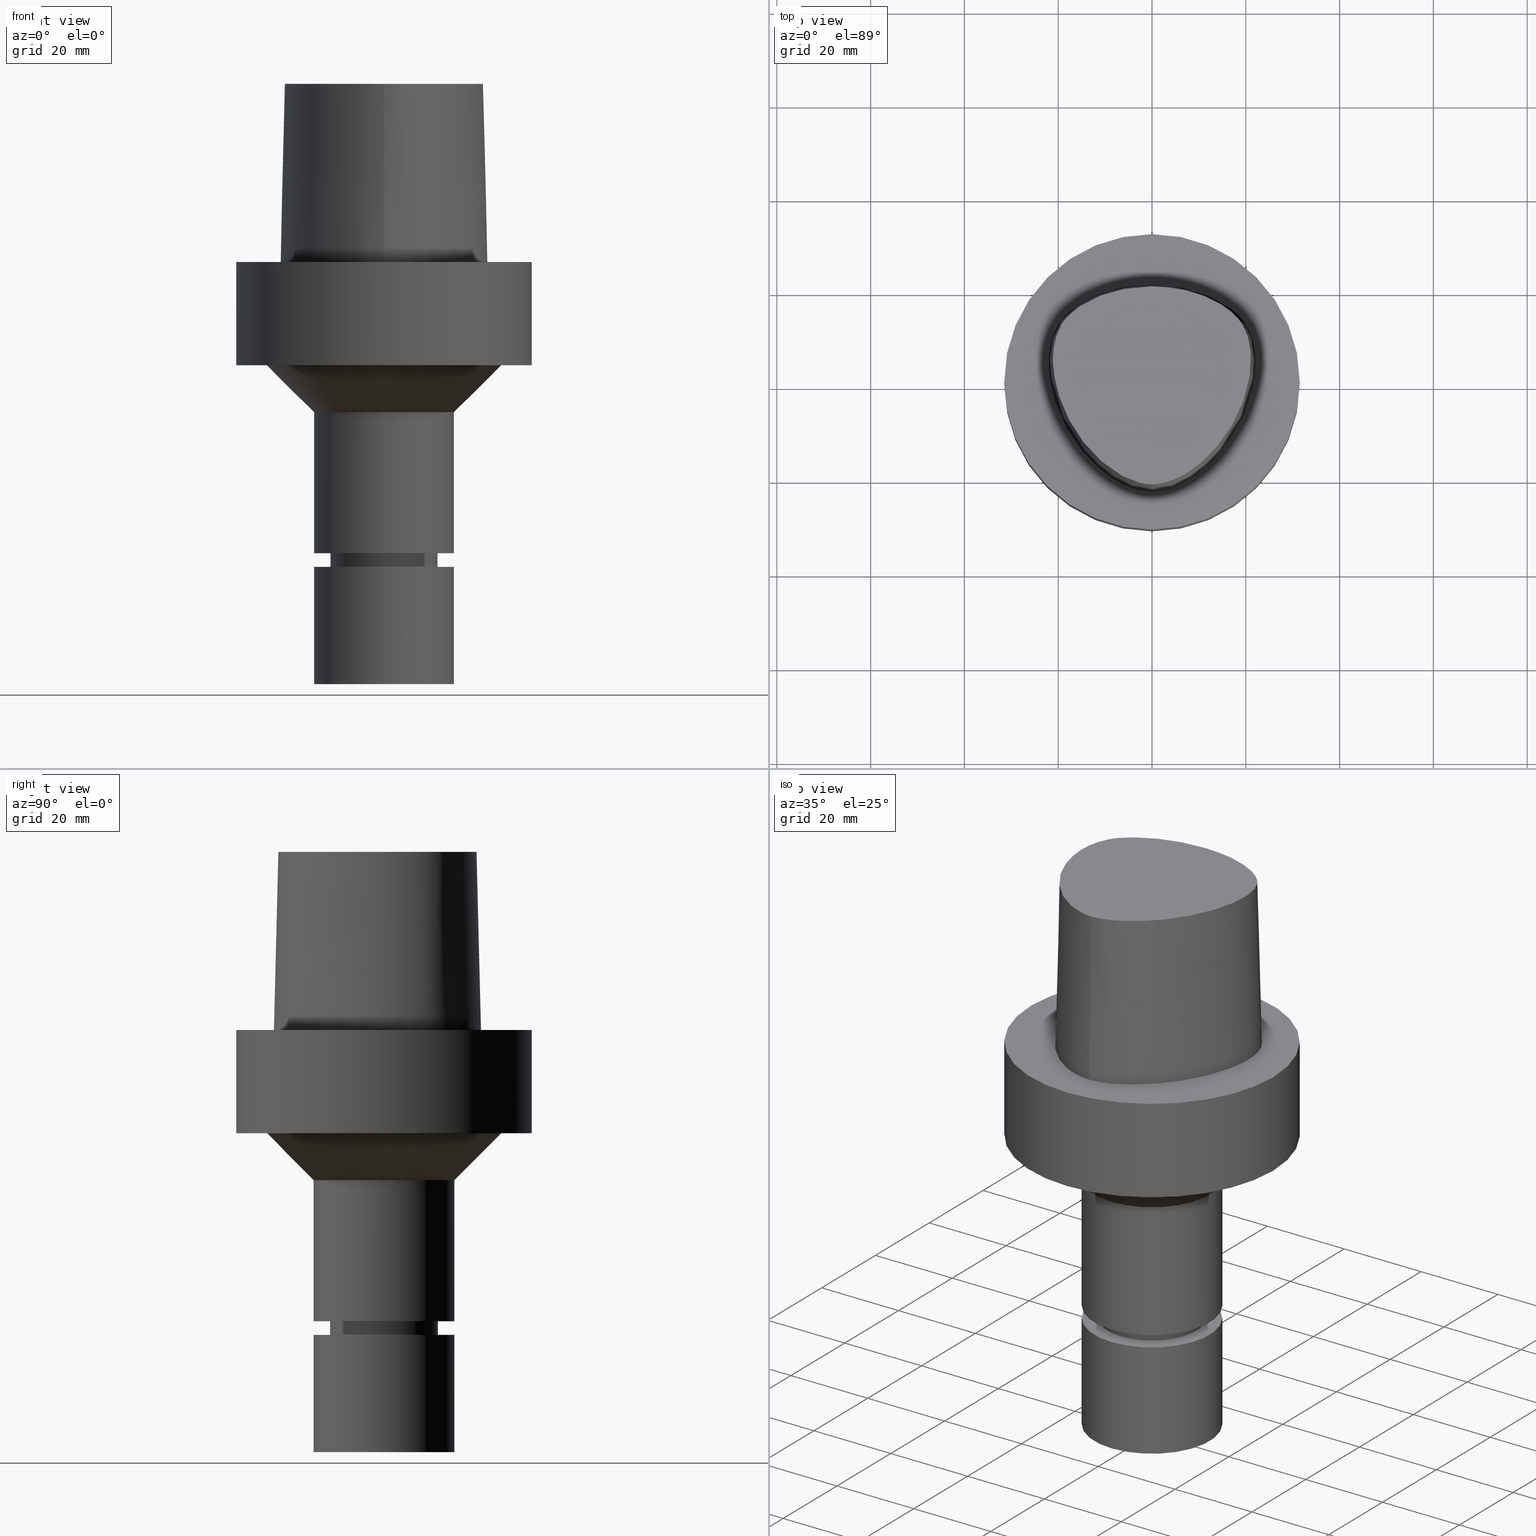
[diagram: canonical four-view strip — front | top / right | iso, engineering-drawing reading convention]
A machine part, canonical four-view strip (front | top / right | iso — engineering-drawing reading convention). The complete STEP part file that produces these views, byte-faithful:
ISO-10303-21;
HEADER;
FILE_DESCRIPTION((''),'1');
FILE_NAME('V:/90_\X2\53D65F9730C730FC30BF\X0\/00_\X2\6DE18DEF30C730FC30BF\X0\/ALL/CAPTO-BKUS\X2\52A05DE556F3\X0\_201801/C6-MEGAER/C6-MEGAER16-90NL.stp','2018-02-01T07:47:06',(''),(''),'Spatial Interop R21 SP3','Kubotek KeyCreator 2011 V10.0.2 (22737)',' ');
FILE_SCHEMA(('automotive_design'));
ENDSEC;
DATA;
#1=MECHANICAL_DESIGN_GEOMETRIC_PRESENTATION_REPRESENTATION(' ',(#14,#15,#16,#17,#18,#19,#20,#21,#22,#23,#24,#25,#26,#27,#28,#29,#30,#31,#32,#33,#34,#35,#36,#37,#38,#39,#40,#41,#42,#43,#44,#45,#46,#47,#48,#49,#50,#51,#52,#53),#10);
#2=PRODUCT_DEFINITION_CONTEXT('',#54,'design');
#3=APPLICATION_PROTOCOL_DEFINITION('INTERNATIONAL STANDARD','automotive_design',1994,#54);
#4=PRODUCT_CATEGORY_RELATIONSHIP('NONE','NONE',#55,#56);
#5=SHAPE_DEFINITION_REPRESENTATION(#57,#58);
#6=PRODUCT_DEFINITION_CONTEXT('',#59,'design');
#7=APPLICATION_PROTOCOL_DEFINITION('INTERNATIONAL STANDARD','automotive_design',1994,#59);
#8=PRODUCT_CATEGORY_RELATIONSHIP('NONE','NONE',#60,#61);
#9=SHAPE_DEFINITION_REPRESENTATION(#62,#63);
#10= (GEOMETRIC_REPRESENTATION_CONTEXT(3)GLOBAL_UNCERTAINTY_ASSIGNED_CONTEXT((#66))GLOBAL_UNIT_ASSIGNED_CONTEXT((#68,#69,#70))REPRESENTATION_CONTEXT('NONE','WORKSPACE'));
#14=STYLED_ITEM('',(#72),#73);
#15=STYLED_ITEM('',(#74),#75);
#16=STYLED_ITEM('',(#76,#77),#78);
#17=STYLED_ITEM('',(#79),#80);
#18=STYLED_ITEM('',(#81),#82);
#19=STYLED_ITEM('',(#83),#84);
#20=STYLED_ITEM('',(#85,#86),#87);
#21=STYLED_ITEM('',(#88,#89),#90);
#22=STYLED_ITEM('',(#91,#92),#93);
#23=STYLED_ITEM('',(#94),#95);
#24=STYLED_ITEM('',(#96),#97);
#25=STYLED_ITEM('',(#98),#99);
#26=STYLED_ITEM('',(#100),#101);
#27=STYLED_ITEM('',(#102,#103),#104);
#28=STYLED_ITEM('',(#105,#106),#107);
#29=STYLED_ITEM('',(#108,#109),#110);
#30=STYLED_ITEM('',(#111),#112);
#31=STYLED_ITEM('',(#113),#114);
#32=STYLED_ITEM('',(#115,#116),#117);
#33=STYLED_ITEM('',(#118),#119);
#34=STYLED_ITEM('',(#120),#121);
#35=STYLED_ITEM('',(#122,#123),#124);
#36=STYLED_ITEM('',(#125,#126),#127);
#37=STYLED_ITEM('',(#128,#129),#130);
#38=STYLED_ITEM('',(#131),#132);
#39=STYLED_ITEM('',(#133),#134);
#40=STYLED_ITEM('',(#135),#136);
#41=STYLED_ITEM('',(#137),#138);
#42=STYLED_ITEM('',(#139,#140),#141);
#43=STYLED_ITEM('',(#142,#143),#144);
#44=STYLED_ITEM('',(#145,#146),#147);
#45=STYLED_ITEM('',(#148,#149),#150);
#46=STYLED_ITEM('',(#151),#152);
#47=STYLED_ITEM('',(#153,#154),#155);
#48=STYLED_ITEM('',(#156,#157),#158);
#49=STYLED_ITEM('',(#159,#160),#161);
#50=STYLED_ITEM('',(#162),#163);
#51=STYLED_ITEM('',(#164),#165);
#52=STYLED_ITEM('',(#166,#167),#168);
#53=STYLED_ITEM('',(#169,#170),#171);
#54=APPLICATION_CONTEXT(' ');
#55=PRODUCT_CATEGORY('part','NONE');
#56=PRODUCT_RELATED_PRODUCT_CATEGORY('detail',' ',(#172));
#57=PRODUCT_DEFINITION_SHAPE('NONE','NONE',#173);
#58=ADVANCED_BREP_SHAPE_REPRESENTATION('Unnamed[1]',(#158,#174),#10);
#59=APPLICATION_CONTEXT(' ');
#60=PRODUCT_CATEGORY('part','NONE');
#61=PRODUCT_RELATED_PRODUCT_CATEGORY('detail',' ',(#175));
#62=PRODUCT_DEFINITION_SHAPE('NONE','NONE',#176);
#63=ADVANCED_BREP_SHAPE_REPRESENTATION('Unnamed[1]',(#93,#177),#10);
#66=UNCERTAINTY_MEASURE_WITH_UNIT(LENGTH_MEASURE(1.0E-006),#68,'','');
#68= (CONVERSION_BASED_UNIT('MILLIMETRE',#180)LENGTH_UNIT()NAMED_UNIT(#183));
#69= (NAMED_UNIT(#185)PLANE_ANGLE_UNIT()SI_UNIT($,.RADIAN.));
#70= (NAMED_UNIT(#185)SOLID_ANGLE_UNIT()SI_UNIT($,.STERADIAN.));
#72=PRESENTATION_STYLE_ASSIGNMENT((#191));
#73=EDGE_CURVE('Unnamed[1]',#192,#192,#193,.T.);
#74=PRESENTATION_STYLE_ASSIGNMENT((#194));
#75=EDGE_CURVE('Unnamed[1]',#195,#195,#196,.T.);
#76=PRESENTATION_STYLE_ASSIGNMENT((#197));
#77=PRESENTATION_STYLE_ASSIGNMENT((#198));
#78=ADVANCED_FACE('Unnamed[1]',(#199,#200),#201,.T.);
#79=PRESENTATION_STYLE_ASSIGNMENT((#202));
#80=EDGE_CURVE('Unnamed[1]',#203,#204,#205,.T.);
#81=PRESENTATION_STYLE_ASSIGNMENT((#206));
#82=EDGE_CURVE('Unnamed[1]',#207,#208,#209,.T.);
#83=PRESENTATION_STYLE_ASSIGNMENT((#210));
#84=EDGE_CURVE('Unnamed[1]',#204,#211,#212,.T.);
#85=PRESENTATION_STYLE_ASSIGNMENT((#213));
#86=PRESENTATION_STYLE_ASSIGNMENT((#214));
#87=ADVANCED_FACE('Unnamed[1]',(#215),#216,.T.);
#88=PRESENTATION_STYLE_ASSIGNMENT((#217));
#89=PRESENTATION_STYLE_ASSIGNMENT((#218));
#90=ADVANCED_FACE('Unnamed[1]',(#219,#220),#221,.T.);
#91=PRESENTATION_STYLE_ASSIGNMENT((#222));
#92=PRESENTATION_STYLE_ASSIGNMENT((#223));
#93=MANIFOLD_SOLID_BREP('Unnamed[1]',#224);
#94=PRESENTATION_STYLE_ASSIGNMENT((#225));
#95=EDGE_CURVE('Unnamed[1]',#226,#226,#227,.T.);
#96=PRESENTATION_STYLE_ASSIGNMENT((#228));
#97=EDGE_CURVE('Unnamed[1]',#229,#229,#230,.T.);
#98=PRESENTATION_STYLE_ASSIGNMENT((#231));
#99=EDGE_CURVE('Unnamed[1]',#211,#208,#232,.T.);
#100=PRESENTATION_STYLE_ASSIGNMENT((#233));
#101=EDGE_CURVE('Unnamed[1]',#234,#234,#235,.T.);
#102=PRESENTATION_STYLE_ASSIGNMENT((#236));
#103=PRESENTATION_STYLE_ASSIGNMENT((#237));
#104=ADVANCED_FACE('Unnamed[1]',(#238),#239,.T.);
#105=PRESENTATION_STYLE_ASSIGNMENT((#240));
#106=PRESENTATION_STYLE_ASSIGNMENT((#241));
#107=ADVANCED_FACE('Unnamed[1]',(#242),#243,.T.);
#108=PRESENTATION_STYLE_ASSIGNMENT((#244));
#109=PRESENTATION_STYLE_ASSIGNMENT((#245));
#110=ADVANCED_FACE('Unnamed[1]',(#246,#247),#248,.T.);
#111=PRESENTATION_STYLE_ASSIGNMENT((#249));
#112=EDGE_CURVE('Unnamed[1]',#250,#250,#251,.T.);
#113=PRESENTATION_STYLE_ASSIGNMENT((#252));
#114=EDGE_CURVE('Unnamed[1]',#253,#253,#254,.T.);
#115=PRESENTATION_STYLE_ASSIGNMENT((#255));
#116=PRESENTATION_STYLE_ASSIGNMENT((#256));
#117=ADVANCED_FACE('Unnamed[1]',(#257,#258),#259,.T.);
#118=PRESENTATION_STYLE_ASSIGNMENT((#260));
#119=EDGE_CURVE('Unnamed[1]',#261,#261,#262,.T.);
#120=PRESENTATION_STYLE_ASSIGNMENT((#263));
#121=EDGE_CURVE('Unnamed[1]',#207,#211,#264,.T.);
#122=PRESENTATION_STYLE_ASSIGNMENT((#265));
#123=PRESENTATION_STYLE_ASSIGNMENT((#266));
#124=ADVANCED_FACE('Unnamed[1]',(#267,#268),#269,.T.);
#125=PRESENTATION_STYLE_ASSIGNMENT((#270));
#126=PRESENTATION_STYLE_ASSIGNMENT((#271));
#127=ADVANCED_FACE('Unnamed[1]',(#272,#273),#274,.T.);
#128=PRESENTATION_STYLE_ASSIGNMENT((#275));
#129=PRESENTATION_STYLE_ASSIGNMENT((#276));
#130=ADVANCED_FACE('Unnamed[1]',(#277,#278),#279,.T.);
#131=PRESENTATION_STYLE_ASSIGNMENT((#280));
#132=EDGE_CURVE('Unnamed[1]',#207,#203,#281,.T.);
#133=PRESENTATION_STYLE_ASSIGNMENT((#282));
#134=EDGE_CURVE('Unnamed[1]',#208,#204,#283,.T.);
#135=PRESENTATION_STYLE_ASSIGNMENT((#284));
#136=EDGE_CURVE('Unnamed[1]',#285,#285,#286,.T.);
#137=PRESENTATION_STYLE_ASSIGNMENT((#287));
#138=EDGE_CURVE('Unnamed[1]',#203,#207,#288,.T.);
#139=PRESENTATION_STYLE_ASSIGNMENT((#289));
#140=PRESENTATION_STYLE_ASSIGNMENT((#290));
#141=ADVANCED_FACE('Unnamed[1]',(#291,#292),#293,.T.);
#142=PRESENTATION_STYLE_ASSIGNMENT((#294));
#143=PRESENTATION_STYLE_ASSIGNMENT((#295));
#144=ADVANCED_FACE('Unnamed[1]',(#296,#297),#298,.T.);
#145=PRESENTATION_STYLE_ASSIGNMENT((#299));
#146=PRESENTATION_STYLE_ASSIGNMENT((#300));
#147=ADVANCED_FACE('Unnamed[1]',(#301,#302),#303,.T.);
#148=PRESENTATION_STYLE_ASSIGNMENT((#304));
#149=PRESENTATION_STYLE_ASSIGNMENT((#305));
#150=ADVANCED_FACE('Unnamed[1]',(#306),#307,.T.);
#151=PRESENTATION_STYLE_ASSIGNMENT((#308));
#152=EDGE_CURVE('Unnamed[1]',#309,#309,#310,.T.);
#153=PRESENTATION_STYLE_ASSIGNMENT((#311));
#154=PRESENTATION_STYLE_ASSIGNMENT((#312));
#155=ADVANCED_FACE('Unnamed[1]',(#313),#314,.T.);
#156=PRESENTATION_STYLE_ASSIGNMENT((#315));
#157=PRESENTATION_STYLE_ASSIGNMENT((#316));
#158=MANIFOLD_SOLID_BREP('Unnamed[1]',#317);
#159=PRESENTATION_STYLE_ASSIGNMENT((#318));
#160=PRESENTATION_STYLE_ASSIGNMENT((#319));
#161=ADVANCED_FACE('Unnamed[1]',(#320),#321,.T.);
#162=PRESENTATION_STYLE_ASSIGNMENT((#322));
#163=EDGE_CURVE('Unnamed[1]',#323,#323,#324,.T.);
#164=PRESENTATION_STYLE_ASSIGNMENT((#325));
#165=EDGE_CURVE('Unnamed[1]',#326,#326,#327,.T.);
#166=PRESENTATION_STYLE_ASSIGNMENT((#328));
#167=PRESENTATION_STYLE_ASSIGNMENT((#329));
#168=ADVANCED_FACE('Unnamed[1]',(#330,#331),#332,.T.);
#169=PRESENTATION_STYLE_ASSIGNMENT((#333));
#170=PRESENTATION_STYLE_ASSIGNMENT((#334));
#171=ADVANCED_FACE('Unnamed[1]',(#335),#336,.T.);
#172=PRODUCT('Unnamed[1]','Unnamed[1]','PART-Unnamed[1]-DESC',(#337));
#173=PRODUCT_DEFINITION('NONE','NONE',#338,#2);
#174=AXIS2_PLACEMENT_3D('',#339,#340,#341);
#175=PRODUCT('Unnamed[1]','Unnamed[1]','PART-Unnamed[1]-DESC',(#342));
#176=PRODUCT_DEFINITION('NONE','NONE',#343,#6);
#177=AXIS2_PLACEMENT_3D('',#344,#345,#346);
#180=LENGTH_MEASURE_WITH_UNIT(LENGTH_MEASURE(1.0),#347);
#183=DIMENSIONAL_EXPONENTS(1.0,0.0,0.0,0.0,0.0,0.0,0.0);
#185=DIMENSIONAL_EXPONENTS(0.0,0.0,0.0,0.0,0.0,0.0,0.0);
#191=CURVE_STYLE('',#348,POSITIVE_LENGTH_MEASURE(1000.0),#349);
#192=VERTEX_POINT('',#350);
#193=CIRCLE('',#351,9.89999999999962);
#194=CURVE_STYLE('',#352,POSITIVE_LENGTH_MEASURE(1000.0),#353);
#195=VERTEX_POINT('',#354);
#196=CIRCLE('',#355,31.5);
#197=SURFACE_STYLE_USAGE(.BOTH.,#356);
#198=CURVE_STYLE('',#357,POSITIVE_LENGTH_MEASURE(1000.0),#358);
#199=FACE_BOUND('',#359,.T.);
#200=FACE_BOUND('',#360,.T.);
#201=CYLINDRICAL_SURFACE('',#361,11.4999999999964);
#202=CURVE_STYLE('',#362,POSITIVE_LENGTH_MEASURE(1000.0),#363);
#203=VERTEX_POINT('',#364);
#204=VERTEX_POINT('',#365);
#205=LINE('',#366,#367);
#206=CURVE_STYLE('',#368,POSITIVE_LENGTH_MEASURE(1000.0),#369);
#207=VERTEX_POINT('',#370);
#208=VERTEX_POINT('',#371);
#209=LINE('',#372,#373);
#210=CURVE_STYLE('',#374,POSITIVE_LENGTH_MEASURE(1000.0),#375);
#211=VERTEX_POINT('',#376);
#212=B_SPLINE_CURVE_WITH_KNOTS('',3,(#377,#378,#379,#380,#381,#382,#383,#384,#385,#386,#387,#388,#389,#390,#391,#392,#393,#394),.UNSPECIFIED.,.F.,.F.,(4,1,1,1,1,1,1,1,1,2,1,1,1,1,4),(-6.6151339308743,-6.20168806019465,-5.78824218951501,-5.37479631883537,-4.96135044815572,-4.13445870679644,-3.30756696543715,-2.89412109475751,-2.48067522407786,-2.06722935339822,-1.65378348271857,-1.24033761203893,-0.826891741359287,-0.413445870679644,0.0),.UNSPECIFIED.);
#213=SURFACE_STYLE_USAGE(.BOTH.,#395);
#214=CURVE_STYLE('',#396,POSITIVE_LENGTH_MEASURE(1000.0),#397);
#215=FACE_OUTER_BOUND('',#398,.T.);
#216=PLANE('',#399);
#217=SURFACE_STYLE_USAGE(.BOTH.,#400);
#218=CURVE_STYLE('',#401,POSITIVE_LENGTH_MEASURE(1000.0),#402);
#219=FACE_BOUND('',#403,.T.);
#220=FACE_BOUND('',#404,.T.);
#221=CYLINDRICAL_SURFACE('',#405,15.0);
#222=SURFACE_STYLE_USAGE(.BOTH.,#406);
#223=CURVE_STYLE('',#407,POSITIVE_LENGTH_MEASURE(1000.0),#408);
#224=CLOSED_SHELL('',(#87,#150,#90));
#225=CURVE_STYLE('',#409,POSITIVE_LENGTH_MEASURE(1000.0),#410);
#226=VERTEX_POINT('',#411);
#227=CIRCLE('',#412,11.5000000000021);
#228=CURVE_STYLE('',#413,POSITIVE_LENGTH_MEASURE(1000.0),#414);
#229=VERTEX_POINT('',#415);
#230=CIRCLE('',#416,15.0000000000001);
#231=CURVE_STYLE('',#417,POSITIVE_LENGTH_MEASURE(1000.0),#418);
#232=CIRCLE('',#419,0.949936168436318);
#233=CURVE_STYLE('',#420,POSITIVE_LENGTH_MEASURE(1000.0),#421);
#234=VERTEX_POINT('',#422);
#235=CIRCLE('',#423,11.4999999999907);
#236=SURFACE_STYLE_USAGE(.BOTH.,#424);
#237=CURVE_STYLE('',#425,POSITIVE_LENGTH_MEASURE(1000.0),#426);
#238=FACE_OUTER_BOUND('',#427,.T.);
#239=B_SPLINE_SURFACE_WITH_KNOTS('',3,3,((#428,#429,#430,#431),(#432,#433,#434,#435),(#436,#437,#438,#439),(#440,#441,#442,#443),(#444,#445,#446,#447),(#448,#449,#450,#451),(#452,#453,#454,#455),(#456,#457,#458,#459),(#460,#461,#462,#463),(#464,#465,#466,#467),(#468,#469,#470,#471),(#472,#473,#474,#475),(#476,#477,#478,#479),(#480,#481,#482,#483),(#484,#485,#486,#487),(#488,#489,#490,#491),(#492,#493,#494,#495),(#496,#497,#498,#499)),.UNSPECIFIED.,.F.,.F.,.F.,(4,1,1,1,1,1,1,1,1,2,1,1,1,1,4),(4,4),(-6.6151339308743,-6.20168806019465,-5.78824218951501,-5.37479631883537,-4.96135044815572,-4.13445870679644,-3.30756696543715,-2.89412109475751,-2.48067522407786,-2.06722935339822,-1.65378348271857,-1.24033761203893,-0.826891741359287,-0.413445870679644,0.0),(-3.8,0.0),.UNSPECIFIED.);
#240=SURFACE_STYLE_USAGE(.BOTH.,#500);
#241=CURVE_STYLE('',#501,POSITIVE_LENGTH_MEASURE(1000.0),#502);
#242=FACE_OUTER_BOUND('',#503,.T.);
#243=CONICAL_SURFACE('',#504,1.0,0.0249931148600041);
#244=SURFACE_STYLE_USAGE(.BOTH.,#505);
#245=CURVE_STYLE('',#506,POSITIVE_LENGTH_MEASURE(1000.0),#507);
#246=FACE_BOUND('',#508,.T.);
#247=FACE_BOUND('',#509,.T.);
#248=CONICAL_SURFACE('',#510,20.0000000000001,0.78539816339745);
#249=CURVE_STYLE('',#511,POSITIVE_LENGTH_MEASURE(1000.0),#512);
#250=VERTEX_POINT('',#513);
#251=CIRCLE('',#514,31.5);
#252=CURVE_STYLE('',#515,POSITIVE_LENGTH_MEASURE(1000.0),#516);
#253=VERTEX_POINT('',#517);
#254=CIRCLE('',#518,10.9999999999999);
#255=SURFACE_STYLE_USAGE(.BOTH.,#519);
#256=CURVE_STYLE('',#520,POSITIVE_LENGTH_MEASURE(1000.0),#521);
#257=FACE_BOUND('',#522,.T.);
#258=FACE_BOUND('',#523,.T.);
#259=CONICAL_SURFACE('',#524,10.4499999999999,0.523598775598227);
#260=CURVE_STYLE('',#525,POSITIVE_LENGTH_MEASURE(1000.0),#526);
#261=VERTEX_POINT('',#527);
#262=CIRCLE('',#528,11.0000000000003);
#263=CURVE_STYLE('',#529,POSITIVE_LENGTH_MEASURE(1000.0),#530);
#264=LINE('',#531,#532);
#265=SURFACE_STYLE_USAGE(.BOTH.,#533);
#266=CURVE_STYLE('',#534,POSITIVE_LENGTH_MEASURE(1000.0),#535);
#267=FACE_BOUND('',#536,.T.);
#268=FACE_OUTER_BOUND('',#537,.T.);
#269=PLANE('',#538);
#270=SURFACE_STYLE_USAGE(.BOTH.,#539);
#271=CURVE_STYLE('',#540,POSITIVE_LENGTH_MEASURE(1000.0),#541);
#272=FACE_BOUND('',#542,.T.);
#273=FACE_BOUND('',#543,.T.);
#274=CYLINDRICAL_SURFACE('',#544,15.0000000000002);
#275=SURFACE_STYLE_USAGE(.BOTH.,#545);
#276=CURVE_STYLE('',#546,POSITIVE_LENGTH_MEASURE(1000.0),#547);
#277=FACE_BOUND('',#548,.T.);
#278=FACE_BOUND('',#549,.T.);
#279=CYLINDRICAL_SURFACE('',#550,11.0000000000001);
#280=CURVE_STYLE('',#551,POSITIVE_LENGTH_MEASURE(1000.0),#552);
#281=B_SPLINE_CURVE_WITH_KNOTS('',3,(#553,#554,#555,#556,#557,#558,#559,#560,#561,#562,#563,#564,#565,#566,#567,#568),.UNSPECIFIED.,.F.,.F.,(4,1,1,1,1,1,1,1,1,1,1,1,1,4),(0.0,0.447924670568964,0.9388024242536,1.50591409090711,2.07314340012323,2.72424957442464,3.2253501842849,3.80982102049476,4.34867996267067,4.85900173381144,5.37972031856977,6.03459825488646,6.61113557741484,6.61513393087395),.UNSPECIFIED.);
#282=CURVE_STYLE('',#569,POSITIVE_LENGTH_MEASURE(1000.0),#570);
#283=B_SPLINE_CURVE_WITH_KNOTS('',3,(#571,#572,#573,#574,#575,#576,#577,#578,#579,#580,#581,#582,#583,#584,#585,#586,#587),.UNSPECIFIED.,.F.,.F.,(4,1,1,1,1,1,1,1,1,1,1,1,1,1,4),(-13.2302678617486,-12.816821991069,-12.4033761203893,-11.9899302497097,-11.57648437903,-11.1630385083504,-10.9563155730106,-10.7495926376707,-10.3361467669911,-9.92270089631145,-9.09580915495216,-8.26891741359287,-7.44202567223358,-7.02857980155394,-6.6151339308743),.UNSPECIFIED.);
#284=CURVE_STYLE('',#588,POSITIVE_LENGTH_MEASURE(1000.0),#589);
#285=VERTEX_POINT('',#590);
#286=CIRCLE('',#591,25.0000000000002);
#287=CURVE_STYLE('',#592,POSITIVE_LENGTH_MEASURE(1000.0),#593);
#288=B_SPLINE_CURVE_WITH_KNOTS('',3,(#594,#595,#596,#597,#598,#599,#600,#601,#602,#603,#604,#605,#606,#607,#608,#609),.UNSPECIFIED.,.F.,.F.,(4,1,1,1,1,1,1,1,1,1,1,1,1,4),(6.61513393087476,6.99917207152274,7.48193246986995,7.96289324787093,8.45540287038584,9.10291653679981,9.67129810936083,10.1618749681153,10.6358867802489,11.1080734988593,11.6043706019633,12.09451993853,12.6985979284494,13.2302678617486),.UNSPECIFIED.);
#289=SURFACE_STYLE_USAGE(.BOTH.,#610);
#290=CURVE_STYLE('',#611,POSITIVE_LENGTH_MEASURE(1000.0),#612);
#291=FACE_BOUND('',#613,.T.);
#292=FACE_OUTER_BOUND('',#614,.T.);
#293=PLANE('',#615);
#294=SURFACE_STYLE_USAGE(.BOTH.,#616);
#295=CURVE_STYLE('',#617,POSITIVE_LENGTH_MEASURE(1000.0),#618);
#296=FACE_BOUND('',#619,.T.);
#297=FACE_BOUND('',#620,.T.);
#298=CONICAL_SURFACE('',#621,11.250000000001,1.047197551189);
#299=SURFACE_STYLE_USAGE(.BOTH.,#622);
#300=CURVE_STYLE('',#623,POSITIVE_LENGTH_MEASURE(1000.0),#624);
#301=FACE_BOUND('',#625,.T.);
#302=FACE_OUTER_BOUND('',#626,.T.);
#303=PLANE('',#627);
#304=SURFACE_STYLE_USAGE(.BOTH.,#628);
#305=CURVE_STYLE('',#629,POSITIVE_LENGTH_MEASURE(1000.0),#630);
#306=FACE_OUTER_BOUND('',#631,.T.);
#307=PLANE('',#632);
#308=CURVE_STYLE('',#633,POSITIVE_LENGTH_MEASURE(1000.0),#634);
#309=VERTEX_POINT('',#635);
#310=CIRCLE('',#636,15.0);
#311=SURFACE_STYLE_USAGE(.BOTH.,#637);
#312=CURVE_STYLE('',#638,POSITIVE_LENGTH_MEASURE(1000.0),#639);
#313=FACE_OUTER_BOUND('',#640,.T.);
#314=PLANE('',#641);
#315=SURFACE_STYLE_USAGE(.BOTH.,#642);
#316=CURVE_STYLE('',#643,POSITIVE_LENGTH_MEASURE(1000.0),#644);
#317=CLOSED_SHELL('',(#161,#104,#107,#171,#124,#168,#147,#110,#127,#141,#78,#144,#130,#117,#155));
#318=SURFACE_STYLE_USAGE(.BOTH.,#645);
#319=CURVE_STYLE('',#646,POSITIVE_LENGTH_MEASURE(1000.0),#647);
#320=FACE_OUTER_BOUND('',#648,.T.);
#321=B_SPLINE_SURFACE_WITH_KNOTS('',3,3,((#649,#650,#651,#652),(#653,#654,#655,#656),(#657,#658,#659,#660),(#661,#662,#663,#664),(#665,#666,#667,#668),(#669,#670,#671,#672),(#673,#674,#675,#676),(#677,#678,#679,#680),(#681,#682,#683,#684),(#685,#686,#687,#688),(#689,#690,#691,#692),(#693,#694,#695,#696),(#697,#698,#699,#700),(#701,#702,#703,#704),(#705,#706,#707,#708),(#709,#710,#711,#712),(#713,#714,#715,#716)),.UNSPECIFIED.,.F.,.F.,.F.,(4,1,1,1,1,1,1,1,1,1,1,1,1,1,4),(4,4),(-13.2302678617486,-12.816821991069,-12.4033761203893,-11.9899302497097,-11.57648437903,-11.1630385083504,-10.9563155730106,-10.7495926376707,-10.3361467669911,-9.92270089631145,-9.09580915495216,-8.26891741359287,-7.44202567223358,-7.02857980155394,-6.6151339308743),(-3.8,0.0),.UNSPECIFIED.);
#322=CURVE_STYLE('',#717,POSITIVE_LENGTH_MEASURE(1000.0),#718);
#323=VERTEX_POINT('',#719);
#324=CIRCLE('',#720,15.0000000000001);
#325=CURVE_STYLE('',#721,POSITIVE_LENGTH_MEASURE(1000.0),#722);
#326=VERTEX_POINT('',#723);
#327=CIRCLE('',#724,15.0000000000002);
#328=SURFACE_STYLE_USAGE(.BOTH.,#725);
#329=CURVE_STYLE('',#726,POSITIVE_LENGTH_MEASURE(1000.0),#727);
#330=FACE_BOUND('',#728,.T.);
#331=FACE_BOUND('',#729,.T.);
#332=CYLINDRICAL_SURFACE('',#730,31.5);
#333=SURFACE_STYLE_USAGE(.BOTH.,#731);
#334=CURVE_STYLE('',#732,POSITIVE_LENGTH_MEASURE(1000.0),#733);
#335=FACE_OUTER_BOUND('',#734,.T.);
#336=PLANE('',#735);
#337=PRODUCT_CONTEXT('',#54,'mechanical');
#338=PRODUCT_DEFINITION_FORMATION_WITH_SPECIFIED_SOURCE(' ','NONE',#172,.NOT_KNOWN.);
#339=CARTESIAN_POINT('',(0.0,0.0,0.0));
#340=DIRECTION('',(0.0,0.0,1.0));
#341=DIRECTION('',(1.0,0.0,0.0));
#342=PRODUCT_CONTEXT('',#59,'mechanical');
#343=PRODUCT_DEFINITION_FORMATION_WITH_SPECIFIED_SOURCE(' ','NONE',#175,.NOT_KNOWN.);
#344=CARTESIAN_POINT('',(0.0,0.0,0.0));
#345=DIRECTION('',(0.0,0.0,1.0));
#346=DIRECTION('',(1.0,0.0,0.0));
#347= (NAMED_UNIT(#183)LENGTH_UNIT()SI_UNIT(.MILLI.,.METRE.));
#348=DRAUGHTING_PRE_DEFINED_CURVE_FONT('continuous');
#349=COLOUR_RGB('',0.0,1.0,0.0);
#350=CARTESIAN_POINT('',(4.9720660045382E-015,9.89999999999963,-81.1999999999991));
#351=AXIS2_PLACEMENT_3D('',#737,#738,#739);
#352=DRAUGHTING_PRE_DEFINED_CURVE_FONT('continuous');
#353=COLOUR_RGB('',0.0,1.0,0.0);
#354=CARTESIAN_POINT('',(-3.88267476788467E-031,31.5,3.85763741731416E-015));
#355=AXIS2_PLACEMENT_3D('',#740,#741,#742);
#356=SURFACE_SIDE_STYLE('',(#743));
#357=DRAUGHTING_PRE_DEFINED_CURVE_FONT('continuous');
#358=COLOUR_RGB('',0.0,1.0,0.0);
#359=EDGE_LOOP('',(#744));
#360=EDGE_LOOP('',(#745));
#361=AXIS2_PLACEMENT_3D('',#746,#747,#748);
#362=DRAUGHTING_PRE_DEFINED_CURVE_FONT('continuous');
#363=COLOUR_RGB('',0.0,1.0,0.0);
#364=CARTESIAN_POINT('',(0.038736923393866,-22.5191997536361,38.0));
#365=CARTESIAN_POINT('',(0.04359356758149,-23.4691235068931,7.78075697532443E-032));
#366=CARTESIAN_POINT('',(0.038736923393866,-22.5191997536361,38.0));
#367=VECTOR('',#749,38.0118715498723);
#368=DRAUGHTING_PRE_DEFINED_CURVE_FONT('continuous');
#369=COLOUR_RGB('',0.0,1.0,0.0);
#370=CARTESIAN_POINT('',(-0.001218547003662,19.7276821925089,38.0));
#371=CARTESIAN_POINT('',(0.044682985379347,20.6765087343109,1.61778115328528E-031));
#372=CARTESIAN_POINT('',(-0.001218547003662,19.7276821925089,38.0));
#373=VECTOR('',#750,38.0118715503078);
#374=DRAUGHTING_PRE_DEFINED_CURVE_FONT('continuous');
#375=COLOUR_RGB('',0.0,1.0,0.0);
#376=CARTESIAN_POINT('',(-0.045171994691285,20.6766009553285,1.6755590516169E-031));
#377=CARTESIAN_POINT('',(0.04359356758149,-23.4691235068931,7.78075697532443E-032));
#378=CARTESIAN_POINT('',(-1.4714994713963,-23.4767895315797,2.46519032881566E-032));
#379=CARTESIAN_POINT('',(-4.43923476371401,-22.821149804767,-4.93038065763132E-032));
#380=CARTESIAN_POINT('',(-8.35043230079961,-20.8000751253325,-9.86076131526265E-032));
#381=CARTESIAN_POINT('',(-11.744900222602,-18.1556117874078,-1.97215226305253E-031));
#382=CARTESIAN_POINT('',(-15.6989602501314,-14.0406306929147,-1.97215226305253E-031));
#383=CARTESIAN_POINT('',(-19.5352875070682,-8.00624990770787,1.97215226305253E-031));
#384=CARTESIAN_POINT('',(-21.7205626190491,-1.16081708945282,0.0));
#385=CARTESIAN_POINT('',(-22.2486616783342,4.54965558738736,0.0));
#386=CARTESIAN_POINT('',(-21.6646421256468,9.00229539124618,0.0));
#387=CARTESIAN_POINT('',(-20.3945635471922,11.7780544971003,0.0));
#388=CARTESIAN_POINT('',(-18.5925528034471,14.1980602922581,0.0));
#389=CARTESIAN_POINT('',(-16.3226584122258,16.1777748720707,0.0));
#390=CARTESIAN_POINT('',(-12.5076407874579,18.2524201541303,9.86076131526265E-032));
#391=CARTESIAN_POINT('',(-8.46776192107786,19.679114377952,9.86076131526265E-032));
#392=CARTESIAN_POINT('',(-4.23043497193604,20.487781597334,1.97215226305253E-031));
#393=CARTESIAN_POINT('',(-1.42313094248379,20.6127745766442,1.10933564796705E-031));
#394=CARTESIAN_POINT('',(-0.045171994691285,20.6766009553285,1.6755590516169E-031));
#395=SURFACE_SIDE_STYLE('',(#751));
#396=DRAUGHTING_PRE_DEFINED_CURVE_FONT('continuous');
#397=COLOUR_RGB('',0.0,1.0,0.0);
#398=EDGE_LOOP('',(#752));
#399=AXIS2_PLACEMENT_3D('',#753,#754,#755);
#400=SURFACE_SIDE_STYLE('',(#756));
#401=DRAUGHTING_PRE_DEFINED_CURVE_FONT('continuous');
#402=COLOUR_RGB('',0.0,1.0,0.0);
#403=EDGE_LOOP('',(#757));
#404=EDGE_LOOP('',(#758));
#405=AXIS2_PLACEMENT_3D('',#759,#760,#761);
#406=SURFACE_SIDE_STYLE('',(#762));
#407=DRAUGHTING_PRE_DEFINED_CURVE_FONT('continuous');
#408=COLOUR_RGB('',0.0,1.0,0.0);
#409=DRAUGHTING_PRE_DEFINED_CURVE_FONT('continuous');
#410=COLOUR_RGB('',0.0,1.0,0.0);
#411=CARTESIAN_POINT('',(4.15836933111325E-015,11.5000000000021,-67.9113248653973));
#412=AXIS2_PLACEMENT_3D('',#763,#764,#765);
#413=DRAUGHTING_PRE_DEFINED_CURVE_FONT('continuous');
#414=COLOUR_RGB('',0.0,1.0,0.0);
#415=CARTESIAN_POINT('',(1.9594348786358E-015,15.0000000000001,-32.0000000000006));
#416=AXIS2_PLACEMENT_3D('',#766,#767,#768);
#417=DRAUGHTING_PRE_DEFINED_CURVE_FONT('continuous');
#418=COLOUR_RGB('',0.0,1.0,0.0);
#419=AXIS2_PLACEMENT_3D('',#769,#770,#771);
#420=DRAUGHTING_PRE_DEFINED_CURVE_FONT('continuous');
#421=COLOUR_RGB('',0.0,1.0,0.0);
#422=CARTESIAN_POINT('',(3.80252831835845E-015,11.4999999999907,-62.1000001144153));
#423=AXIS2_PLACEMENT_3D('',#772,#773,#774);
#424=SURFACE_SIDE_STYLE('',(#775));
#425=DRAUGHTING_PRE_DEFINED_CURVE_FONT('continuous');
#426=COLOUR_RGB('',0.0,1.0,0.0);
#427=EDGE_LOOP('',(#776,#777,#778,#779));
#428=CARTESIAN_POINT('',(0.038736923393866,-22.5191997536361,38.0));
#429=CARTESIAN_POINT('',(0.04035580478973,-22.8358410047159,25.3333333333066));
#430=CARTESIAN_POINT('',(0.041974686185626,-23.1524822558133,12.6666666666934));
#431=CARTESIAN_POINT('',(0.04359356758149,-23.4691235068931,7.78075697532443E-032));
#432=CARTESIAN_POINT('',(-1.33786123484754,-22.5261650259856,38.0));
#433=CARTESIAN_POINT('',(-1.38240731367927,-22.8430399310626,25.3333333333066));
#434=CARTESIAN_POINT('',(-1.42695339249092,-23.1599147815484,12.6666666666934));
#435=CARTESIAN_POINT('',(-1.4714994713963,-23.4767895315797,2.46519032881566E-032));
#436=CARTESIAN_POINT('',(-4.08909358431842,-21.9268839879558,38.0));
#437=CARTESIAN_POINT('',(-4.20580731135515,-22.2249725500078,25.3333333333066));
#438=CARTESIAN_POINT('',(-4.32252104640446,-22.5230611651922,12.6666666666934));
#439=CARTESIAN_POINT('',(-4.43923476371401,-22.821149804767,-4.93038065763132E-032));
#440=CARTESIAN_POINT('',(-7.8333083619947,-19.9973514861616,38.0));
#441=CARTESIAN_POINT('',(-8.00568301809614,-20.2649260859405,25.3333333333066));
#442=CARTESIAN_POINT('',(-8.1780576640789,-20.532500564315,12.6666666666934));
#443=CARTESIAN_POINT('',(-8.35043230079961,-20.8000751253325,-9.86076131526265E-032));
#444=CARTESIAN_POINT('',(-11.1035071147626,-17.450554957873,38.0));
#445=CARTESIAN_POINT('',(-11.3173048160562,-17.6855739222454,25.3333333333066));
#446=CARTESIAN_POINT('',(-11.5311025116181,-17.9205928617968,12.6666666666934));
#447=CARTESIAN_POINT('',(-11.744900222602,-18.1556117874078,-1.97215226305253E-031));
#448=CARTESIAN_POINT('',(-14.9379535189057,-13.461132049697,38.0));
#449=CARTESIAN_POINT('',(-15.191622410671,-13.6542981711372,25.3333333333066));
#450=CARTESIAN_POINT('',(-15.4452913389853,-13.8474645327131,12.6666666666934));
#451=CARTESIAN_POINT('',(-15.6989602501314,-14.0406306929147,-1.97215226305253E-031));
#452=CARTESIAN_POINT('',(-18.6681263017223,-7.59391757463204,38.0));
#453=CARTESIAN_POINT('',(-18.9571800800711,-7.73136168081928,25.3333333333066));
#454=CARTESIAN_POINT('',(-19.2462337287194,-7.86880572399774,12.6666666666934));
#455=CARTESIAN_POINT('',(-19.5352875070682,-8.00624990770787,1.97215226305253E-031));
#456=CARTESIAN_POINT('',(-20.7857899858339,-0.952862819790525,38.0));
#457=CARTESIAN_POINT('',(-21.0973808305434,-1.02218087467418,25.3333333333066));
#458=CARTESIAN_POINT('',(-21.408971677436,-1.09149899580772,12.6666666666934));
#459=CARTESIAN_POINT('',(-21.7205626190491,-1.16081708945282,0.0));
#460=CARTESIAN_POINT('',(-21.2911760556836,4.5469215763113,38.0));
#461=CARTESIAN_POINT('',(-21.610337904926,4.54783292082248,25.3333333333066));
#462=CARTESIAN_POINT('',(-21.9294998290918,4.54874426225691,12.6666666666934));
#463=CARTESIAN_POINT('',(-22.2486616783342,4.54965558738736,0.0));
#464=CARTESIAN_POINT('',(-20.7345309521958,8.74909381391006,38.0));
#465=CARTESIAN_POINT('',(-21.0445680426217,8.83349432450556,25.3333333333066));
#466=CARTESIAN_POINT('',(-21.3546050933631,8.91789488065068,12.6666666666934));
#467=CARTESIAN_POINT('',(-21.6646421256468,9.00229539124618,0.0));
#468=CARTESIAN_POINT('',(-19.5531512296439,11.3174844040833,38.0));
#469=CARTESIAN_POINT('',(-19.8336219699984,11.4710077674213,25.3333333333066));
#470=CARTESIAN_POINT('',(-20.1140927680763,11.6245311337623,12.6666666666934));
#471=CARTESIAN_POINT('',(-20.3945635471922,11.7780544971003,0.0));
#472=CARTESIAN_POINT('',(-17.9100913688793,13.524027510437,38.0));
#473=CARTESIAN_POINT('',(-18.1375785458768,13.7487051053655,25.3333333333066));
#474=CARTESIAN_POINT('',(-18.365065665211,13.9733826973296,12.6666666666934));
#475=CARTESIAN_POINT('',(-18.5925528034471,14.1980602922581,0.0));
#476=CARTESIAN_POINT('',(-15.7996349656398,15.3762170634413,38.0));
#477=CARTESIAN_POINT('',(-15.9739761051783,15.6434029846179,25.3333333333066));
#478=CARTESIAN_POINT('',(-16.1483172726872,15.9105889315134,12.6666666666934));
#479=CARTESIAN_POINT('',(-16.3226584122258,16.1777748720707,0.0));
#480=CARTESIAN_POINT('',(-12.1175640002064,17.3825162484012,38.0));
#481=CARTESIAN_POINT('',(-12.2475895903055,17.6724842099619,25.3333333333066));
#482=CARTESIAN_POINT('',(-12.3776152070492,17.9624521925696,12.6666666666934));
#483=CARTESIAN_POINT('',(-12.5076407874579,18.2524201541303,9.86076131526265E-032));
#484=CARTESIAN_POINT('',(-8.21761151654222,18.7588585989994,38.0));
#485=CARTESIAN_POINT('',(-8.30099497910627,19.0656105427881,25.3333333333066));
#486=CARTESIAN_POINT('',(-8.38437843913309,19.3723624535439,12.6666666666934));
#487=CARTESIAN_POINT('',(-8.46776192107786,19.679114377952,9.86076131526265E-032));
#488=CARTESIAN_POINT('',(-4.13466093881225,19.5396850837055,38.0));
#489=CARTESIAN_POINT('',(-4.16658562115465,19.8557172636973,25.3333333333066));
#490=CARTESIAN_POINT('',(-4.19851029939059,20.1717494367229,12.6666666666934));
#491=CARTESIAN_POINT('',(-4.23043497193604,20.487781597334,1.97215226305253E-031));
#492=CARTESIAN_POINT('',(-1.37917220403684,19.6638560588908,38.0));
#493=CARTESIAN_POINT('',(-1.39382511685176,19.98016223565,25.3333333333066));
#494=CARTESIAN_POINT('',(-1.40847802945569,20.296468399885,12.6666666666934));
#495=CARTESIAN_POINT('',(-1.42313094248379,20.6127745766442,1.10933564796705E-031));
#496=CARTESIAN_POINT('',(-0.001218547003662,19.7276821925089,38.0));
#497=CARTESIAN_POINT('',(-0.015869696232855,20.043988446791,25.3333333333066));
#498=CARTESIAN_POINT('',(-0.030520845462092,20.3602947010464,12.6666666666934));
#499=CARTESIAN_POINT('',(-0.045171994691285,20.6766009553285,1.6755590516169E-031));
#500=SURFACE_SIDE_STYLE('',(#780));
#501=DRAUGHTING_PRE_DEFINED_CURVE_FONT('continuous');
#502=COLOUR_RGB('',0.0,1.0,0.0);
#503=EDGE_LOOP('',(#781,#782,#783));
#504=AXIS2_PLACEMENT_3D('',#784,#785,#786);
#505=SURFACE_SIDE_STYLE('',(#787));
#506=DRAUGHTING_PRE_DEFINED_CURVE_FONT('continuous');
#507=COLOUR_RGB('',0.0,1.0,0.0);
#508=EDGE_LOOP('',(#788));
#509=EDGE_LOOP('',(#789));
#510=AXIS2_PLACEMENT_3D('',#790,#791,#792);
#511=DRAUGHTING_PRE_DEFINED_CURVE_FONT('continuous');
#512=COLOUR_RGB('',0.0,1.0,0.0);
#513=CARTESIAN_POINT('',(1.34711147906212E-015,31.5,-22.0000000000006));
#514=AXIS2_PLACEMENT_3D('',#793,#794,#795);
#515=DRAUGHTING_PRE_DEFINED_CURVE_FONT('continuous');
#516=COLOUR_RGB('',0.0,1.0,0.0);
#517=CARTESIAN_POINT('',(4.17604558509238E-015,10.9999999999999,-68.1999999999985));
#518=AXIS2_PLACEMENT_3D('',#796,#797,#798);
#519=SURFACE_SIDE_STYLE('',(#799));
#520=DRAUGHTING_PRE_DEFINED_CURVE_FONT('continuous');
#521=COLOUR_RGB('',0.0,1.0,0.0);
#522=EDGE_LOOP('',(#800));
#523=EDGE_LOOP('',(#801));
#524=AXIS2_PLACEMENT_3D('',#802,#803,#804);
#525=DRAUGHTING_PRE_DEFINED_CURVE_FONT('continuous');
#526=COLOUR_RGB('',0.0,1.0,0.0);
#527=CARTESIAN_POINT('',(4.85540272827838E-015,11.0000000000003,-79.294744111672));
#528=AXIS2_PLACEMENT_3D('',#805,#806,#807);
#529=DRAUGHTING_PRE_DEFINED_CURVE_FONT('continuous');
#530=COLOUR_RGB('',0.0,1.0,0.0);
#531=CARTESIAN_POINT('',(-0.001218547003662,19.7276821925089,38.0));
#532=VECTOR('',#808,38.0118715498723);
#533=SURFACE_SIDE_STYLE('',(#809));
#534=DRAUGHTING_PRE_DEFINED_CURVE_FONT('continuous');
#535=COLOUR_RGB('',0.0,1.0,0.0);
#536=EDGE_LOOP('',(#810,#811,#812));
#537=EDGE_LOOP('',(#813));
#538=AXIS2_PLACEMENT_3D('',#814,#815,#816);
#539=SURFACE_SIDE_STYLE('',(#817));
#540=DRAUGHTING_PRE_DEFINED_CURVE_FONT('continuous');
#541=COLOUR_RGB('',0.0,1.0,0.0);
#542=EDGE_LOOP('',(#818));
#543=EDGE_LOOP('',(#819));
#544=AXIS2_PLACEMENT_3D('',#820,#821,#822);
#545=SURFACE_SIDE_STYLE('',(#823));
#546=DRAUGHTING_PRE_DEFINED_CURVE_FONT('continuous');
#547=COLOUR_RGB('',0.0,1.0,0.0);
#548=EDGE_LOOP('',(#824));
#549=EDGE_LOOP('',(#825));
#550=AXIS2_PLACEMENT_3D('',#826,#827,#828);
#551=DRAUGHTING_PRE_DEFINED_CURVE_FONT('continuous');
#552=COLOUR_RGB('',0.0,1.0,0.0);
#553=CARTESIAN_POINT('',(-0.001218547003662,19.7276821925089,38.0));
#554=CARTESIAN_POINT('',(-1.49408492138443,19.6585333605309,38.0));
#555=CARTESIAN_POINT('',(-4.62297391420352,19.513604770166,38.0));
#556=CARTESIAN_POINT('',(-9.56160616752212,18.4291575730197,38.0));
#557=CARTESIAN_POINT('',(-14.5427684976927,16.2697452580488,38.0));
#558=CARTESIAN_POINT('',(-19.4315563551602,12.5302108980807,38.0));
#559=CARTESIAN_POINT('',(-21.306358833612,6.76352894547076,38.0));
#560=CARTESIAN_POINT('',(-21.0724946936277,0.957075236984038,38.0));
#561=CARTESIAN_POINT('',(-19.7876470880144,-4.34628503581652,38.0));
#562=CARTESIAN_POINT('',(-17.5396999600095,-9.33314444653089,38.0));
#563=CARTESIAN_POINT('',(-14.645447733857,-13.7185760345629,38.0));
#564=CARTESIAN_POINT('',(-10.7996726536643,-17.856257282137,38.0));
#565=CARTESIAN_POINT('',(-6.00479510196376,-21.2687382067675,38.0));
#566=CARTESIAN_POINT('',(-1.90747171908525,-22.5250621415864,38.0));
#567=CARTESIAN_POINT('',(0.025424107066464,-22.5192678176378,38.0));
#568=CARTESIAN_POINT('',(0.038736923394311,-22.519199753636,38.0));
#569=DRAUGHTING_PRE_DEFINED_CURVE_FONT('continuous');
#570=COLOUR_RGB('',0.0,1.0,0.0);
#571=CARTESIAN_POINT('',(0.044682985379347,20.6765087343109,1.61778115328528E-031));
#572=CARTESIAN_POINT('',(1.42379272427753,20.6097915814392,8.62816615085482E-032));
#573=CARTESIAN_POINT('',(4.2230955003445,20.4837538303966,1.4791141972894E-031));
#574=CARTESIAN_POINT('',(8.47220762821777,19.6890432607088,9.86076131526265E-032));
#575=CARTESIAN_POINT('',(12.5141247708253,18.2434968480404,0.0));
#576=CARTESIAN_POINT('',(16.3038624872874,16.1734192182143,1.97215226305253E-031));
#577=CARTESIAN_POINT('',(19.1446913988473,13.7036723639434,-1.97215226305253E-031));
#578=CARTESIAN_POINT('',(20.7319894342149,11.1014620996188,0.0));
#579=CARTESIAN_POINT('',(21.7831756505763,8.28099229708081,-1.97215226305253E-031));
#580=CARTESIAN_POINT('',(22.2258240701438,4.60865440596506,0.0));
#581=CARTESIAN_POINT('',(21.7436130080666,-1.11326526354485,0.0));
#582=CARTESIAN_POINT('',(19.5519487660502,-7.95432366164584,0.0));
#583=CARTESIAN_POINT('',(14.9574167123838,-15.2089785567293,0.0));
#584=CARTESIAN_POINT('',(9.66840283021945,-20.0827414369705,-9.86076131526265E-032));
#585=CARTESIAN_POINT('',(4.51628650521788,-22.7946374572188,-9.86076131526265E-032));
#586=CARTESIAN_POINT('',(1.55867251738073,-23.4612972770043,-1.23259516440783E-032));
#587=CARTESIAN_POINT('',(0.04359356758149,-23.4691235068931,7.78075697532443E-032));
#588=DRAUGHTING_PRE_DEFINED_CURVE_FONT('continuous');
#589=COLOUR_RGB('',0.0,1.0,0.0);
#590=CARTESIAN_POINT('',(1.34711147906212E-015,25.0000000000002,-22.0000000000005));
#591=AXIS2_PLACEMENT_3D('',#829,#830,#831);
#592=DRAUGHTING_PRE_DEFINED_CURVE_FONT('continuous');
#593=COLOUR_RGB('',0.0,1.0,0.0);
#594=CARTESIAN_POINT('',(0.038736923394311,-22.519199753636,38.0));
#595=CARTESIAN_POINT('',(1.31742058183662,-22.512662269405,38.0));
#596=CARTESIAN_POINT('',(4.2093773447498,-21.9116226439989,38.0));
#597=CARTESIAN_POINT('',(8.20895504542113,-19.7798683845067,38.0));
#598=CARTESIAN_POINT('',(11.9784633234593,-16.681663904162,38.0));
#599=CARTESIAN_POINT('',(15.5308821579362,-12.5807487594113,38.0));
#600=CARTESIAN_POINT('',(18.4566248438667,-7.64932246015528,38.0));
#601=CARTESIAN_POINT('',(20.4036090752029,-2.27012499825289,38.0));
#602=CARTESIAN_POINT('',(21.2357187429189,2.79891401173156,38.0));
#603=CARTESIAN_POINT('',(21.0811206267748,7.62543090736657,38.0));
#604=CARTESIAN_POINT('',(19.3383577336563,12.2772250726194,38.0));
#605=CARTESIAN_POINT('',(15.5796322014404,15.5799672120682,38.0));
#606=CARTESIAN_POINT('',(10.8392956074438,17.9834601687347,38.0));
#607=CARTESIAN_POINT('',(5.56068045850571,19.4586143858472,38.0));
#608=CARTESIAN_POINT('',(1.77223893711014,19.6418877095654,38.0));
#609=CARTESIAN_POINT('',(-0.001218367817519,19.7276822012873,38.0));
#610=SURFACE_SIDE_STYLE('',(#832));
#611=DRAUGHTING_PRE_DEFINED_CURVE_FONT('continuous');
#612=COLOUR_RGB('',0.0,1.0,0.0);
#613=EDGE_LOOP('',(#833));
#614=EDGE_LOOP('',(#834));
#615=AXIS2_PLACEMENT_3D('',#835,#836,#837);
#616=SURFACE_SIDE_STYLE('',(#838));
#617=DRAUGHTING_PRE_DEFINED_CURVE_FONT('continuous');
#618=COLOUR_RGB('',0.0,1.0,0.0);
#619=EDGE_LOOP('',(#839));
#620=EDGE_LOOP('',(#840));
#621=AXIS2_PLACEMENT_3D('',#841,#842,#843);
#622=SURFACE_SIDE_STYLE('',(#844));
#623=DRAUGHTING_PRE_DEFINED_CURVE_FONT('continuous');
#624=COLOUR_RGB('',0.0,1.0,0.0);
#625=EDGE_LOOP('',(#845));
#626=EDGE_LOOP('',(#846));
#627=AXIS2_PLACEMENT_3D('',#847,#848,#849);
#628=SURFACE_SIDE_STYLE('',(#850));
#629=DRAUGHTING_PRE_DEFINED_CURVE_FONT('continuous');
#630=COLOUR_RGB('',0.0,1.0,0.0);
#631=EDGE_LOOP('',(#851));
#632=AXIS2_PLACEMENT_3D('',#852,#853,#854);
#633=DRAUGHTING_PRE_DEFINED_CURVE_FONT('continuous');
#634=COLOUR_RGB('',0.0,1.0,0.0);
#635=CARTESIAN_POINT('',(5.51091059616309E-015,15.0,-90.0));
#636=AXIS2_PLACEMENT_3D('',#855,#856,#857);
#637=SURFACE_SIDE_STYLE('',(#858));
#638=DRAUGHTING_PRE_DEFINED_CURVE_FONT('continuous');
#639=COLOUR_RGB('',0.0,1.0,0.0);
#640=EDGE_LOOP('',(#859));
#641=AXIS2_PLACEMENT_3D('',#860,#861,#862);
#642=SURFACE_SIDE_STYLE('',(#863));
#643=DRAUGHTING_PRE_DEFINED_CURVE_FONT('continuous');
#644=COLOUR_RGB('',0.0,1.0,0.0);
#645=SURFACE_SIDE_STYLE('',(#864));
#646=DRAUGHTING_PRE_DEFINED_CURVE_FONT('continuous');
#647=COLOUR_RGB('',0.0,1.0,0.0);
#648=EDGE_LOOP('',(#865,#866,#867,#868));
#649=CARTESIAN_POINT('',(-0.001218367817519,19.7276822012873,38.0));
#650=CARTESIAN_POINT('',(0.014082083248157,20.0439577123075,25.3333333333066));
#651=CARTESIAN_POINT('',(0.029382534313671,20.3602332232908,12.6666666666934));
#652=CARTESIAN_POINT('',(0.044682985379347,20.6765087343109,1.61778115328528E-031));
#653=CARTESIAN_POINT('',(1.37788651195108,19.6609652834875,38.0));
#654=CARTESIAN_POINT('',(1.3931885827258,19.9772407169847,25.3333333333066));
#655=CARTESIAN_POINT('',(1.40849065356095,20.2935162254648,12.6666666666934));
#656=CARTESIAN_POINT('',(1.42379272427753,20.6097915814392,8.62816615085482E-032));
#657=CARTESIAN_POINT('',(4.135446440878,19.5347778787784,38.0));
#658=CARTESIAN_POINT('',(4.16466278851883,19.8511031866125,25.3333333333066));
#659=CARTESIAN_POINT('',(4.1938791526746,20.1674284644204,12.6666666666934));
#660=CARTESIAN_POINT('',(4.2230955003445,20.4837538303966,1.4791141972894E-031));
#661=CARTESIAN_POINT('',(8.213607363795,18.7706026638736,38.0));
#662=CARTESIAN_POINT('',(8.29980745008421,19.0767495109635,25.3333333333066));
#663=CARTESIAN_POINT('',(8.38600751285747,19.3828964329996,12.6666666666934));
#664=CARTESIAN_POINT('',(8.47220762821777,19.6890432607088,9.86076131526265E-032));
#665=CARTESIAN_POINT('',(12.1316338645671,17.3698624840857,38.0));
#666=CARTESIAN_POINT('',(12.2591308270381,17.6610739397708,25.3333333333066));
#667=CARTESIAN_POINT('',(12.3866278083543,17.9522853923553,12.6666666666934));
#668=CARTESIAN_POINT('',(12.5141247708253,18.2434968480404,0.0));
#669=CARTESIAN_POINT('',(15.7706546153679,15.3789501349612,38.0));
#670=CARTESIAN_POINT('',(15.9483905900895,15.6437731794811,25.3333333333066));
#671=CARTESIAN_POINT('',(16.1261265513272,15.9085961736944,12.6666666666934));
#672=CARTESIAN_POINT('',(16.3038624872874,16.1734192182143,1.97215226305253E-031));
#673=CARTESIAN_POINT('',(18.4265894256284,13.0570022172893,38.0));
#674=CARTESIAN_POINT('',(18.6659567517146,13.2725589420689,25.3333333333066));
#675=CARTESIAN_POINT('',(18.9053240921419,13.4881156488541,12.6666666666934));
#676=CARTESIAN_POINT('',(19.1446913988473,13.7036723639434,-1.97215226305253E-031));
#677=CARTESIAN_POINT('',(19.8679958653038,10.6923771981998,38.0));
#678=CARTESIAN_POINT('',(20.1559937048299,10.8287388264873,25.3333333333066));
#679=CARTESIAN_POINT('',(20.4439915656177,10.965100461641,12.6666666666934));
#680=CARTESIAN_POINT('',(20.7319894342149,11.1014620996188,0.0));
#681=CARTESIAN_POINT('',(20.8470867582337,8.07149548576131,38.0));
#682=CARTESIAN_POINT('',(21.1591164072431,8.14132775555392,25.3333333333066));
#683=CARTESIAN_POINT('',(21.4711459821861,8.21116003697855,12.6666666666934));
#684=CARTESIAN_POINT('',(21.7831756505763,8.28099229708081,-1.97215226305253E-031));
#685=CARTESIAN_POINT('',(21.2693244256982,4.61157245650171,38.0));
#686=CARTESIAN_POINT('',(21.5881576801997,4.6105997689982,25.3333333333066));
#687=CARTESIAN_POINT('',(21.9069908544037,4.60962709346857,12.6666666666934));
#688=CARTESIAN_POINT('',(22.2258240701438,4.60865440596506,0.0));
#689=CARTESIAN_POINT('',(20.8071610855575,-0.912828649855193,38.0));
#690=CARTESIAN_POINT('',(21.119311671178,-0.979640884839481,25.3333333333066));
#691=CARTESIAN_POINT('',(21.4314624224461,-1.04645306732201,12.6666666666934));
#692=CARTESIAN_POINT('',(21.7436130080666,-1.11326526354485,0.0));
#693=CARTESIAN_POINT('',(18.6841935581315,-7.54428794252837,38.0));
#694=CARTESIAN_POINT('',(18.9734452551861,-7.6809665891091,25.3333333333066));
#695=CARTESIAN_POINT('',(19.2626970689956,-7.81764505382656,12.6666666666934));
#696=CARTESIAN_POINT('',(19.5519487660502,-7.95432366164584,0.0));
#697=CARTESIAN_POINT('',(14.2175552814,-14.5971504342323,38.0));
#698=CARTESIAN_POINT('',(14.4641757465198,-14.8010930946929,25.3333333333066));
#699=CARTESIAN_POINT('',(14.710796247264,-15.0050359737917,12.6666666666934));
#700=CARTESIAN_POINT('',(14.9574167123838,-15.2089785567293,0.0));
#701=CARTESIAN_POINT('',(9.0844808732933,-19.3179298129689,38.0));
#702=CARTESIAN_POINT('',(9.27912152349017,-19.572866915557,25.3333333333066));
#703=CARTESIAN_POINT('',(9.47376218971294,-19.827804295621,12.6666666666934));
#704=CARTESIAN_POINT('',(9.66840283021945,-20.0827414369705,-9.86076131526265E-032));
#705=CARTESIAN_POINT('',(4.17112919194182,-21.8987568152736,38.0));
#706=CARTESIAN_POINT('',(4.28618163483998,-22.1973837173649,25.3333333333066));
#707=CARTESIAN_POINT('',(4.40123406239433,-22.4960105163661,12.6666666666934));
#708=CARTESIAN_POINT('',(4.51628650521788,-22.7946374572188,-9.86076131526265E-032));
#709=CARTESIAN_POINT('',(1.41533654381097,-22.5120888467812,38.0));
#710=CARTESIAN_POINT('',(1.46311520162011,-22.8284916374445,25.3333333333066));
#711=CARTESIAN_POINT('',(1.51089385942236,-23.144894486341,12.6666666666934));
#712=CARTESIAN_POINT('',(1.55867251738073,-23.4612972770043,-1.23259516440783E-032));
#713=CARTESIAN_POINT('',(0.038736923393866,-22.5191997536361,38.0));
#714=CARTESIAN_POINT('',(0.04035580478973,-22.8358410047159,25.3333333333066));
#715=CARTESIAN_POINT('',(0.041974686185626,-23.1524822558133,12.6666666666934));
#716=CARTESIAN_POINT('',(0.04359356758149,-23.4691235068931,7.78075697532443E-032));
#717=DRAUGHTING_PRE_DEFINED_CURVE_FONT('continuous');
#718=COLOUR_RGB('',0.0,1.0,0.0);
#719=CARTESIAN_POINT('',(3.9801020972289E-015,15.0000000000001,-65.0));
#720=AXIS2_PLACEMENT_3D('',#869,#870,#871);
#721=DRAUGHTING_PRE_DEFINED_CURVE_FONT('continuous');
#722=COLOUR_RGB('',0.0,1.0,0.0);
#723=CARTESIAN_POINT('',(3.80252831835845E-015,15.0000000000002,-62.1000001144153));
#724=AXIS2_PLACEMENT_3D('',#872,#873,#874);
#725=SURFACE_SIDE_STYLE('',(#875));
#726=DRAUGHTING_PRE_DEFINED_CURVE_FONT('continuous');
#727=COLOUR_RGB('',0.0,1.0,0.0);
#728=EDGE_LOOP('',(#876));
#729=EDGE_LOOP('',(#877));
#730=AXIS2_PLACEMENT_3D('',#878,#879,#880);
#731=SURFACE_SIDE_STYLE('',(#881));
#732=DRAUGHTING_PRE_DEFINED_CURVE_FONT('continuous');
#733=COLOUR_RGB('',0.0,1.0,0.0);
#734=EDGE_LOOP('',(#882,#883));
#735=AXIS2_PLACEMENT_3D('',#884,#885,#886);
#737=CARTESIAN_POINT('',(4.9720660045382E-015,9.9441320090764E-015,-81.1999999999991));
#738=DIRECTION('',(6.12323399573677E-017,1.22464679914735E-016,-1.0));
#739=DIRECTION('',(-1.23259516440783E-032,1.0,1.22464679914735E-016));
#740=CARTESIAN_POINT('',(0.0,0.0,0.0));
#741=DIRECTION('',(6.12323399573677E-017,1.22464679914735E-016,-1.0));
#742=DIRECTION('',(-1.23259516440783E-032,1.0,1.22464679914735E-016));
#743=SURFACE_STYLE_FILL_AREA(#887);
#744=ORIENTED_EDGE('',*,*,#95,.F.);
#745=ORIENTED_EDGE('',*,*,#101,.T.);
#746=CARTESIAN_POINT('',(3.98044882473584E-015,7.96089764947169E-015,-65.0056624899063));
#747=DIRECTION('',(6.12323399573676E-017,1.22464679914735E-016,-1.0));
#748=DIRECTION('',(-1.23259516440783E-032,1.0,1.22464679914735E-016));
#749=DIRECTION('',(0.000127766510556,-0.024990186342461,-0.999687688361864));
#750=DIRECTION('',(0.001207557810519,0.024961321374199,-0.999687688350411));
#751=SURFACE_STYLE_FILL_AREA(#888);
#752=ORIENTED_EDGE('',*,*,#152,.T.);
#753=CARTESIAN_POINT('',(5.51091059616309E-015,7.50000000000001,-90.0));
#754=DIRECTION('',(6.12323399573677E-017,1.22464679914735E-016,-1.0));
#755=DIRECTION('',(-1.23259516440783E-032,1.0,1.22464679914735E-016));
#756=SURFACE_STYLE_FILL_AREA(#889);
#757=ORIENTED_EDGE('',*,*,#152,.F.);
#758=ORIENTED_EDGE('',*,*,#163,.T.);
#759=CARTESIAN_POINT('',(4.745506346696E-015,9.49101269339199E-015,-77.5));
#760=DIRECTION('',(6.12323399573677E-017,1.22464679914735E-016,-1.0));
#761=DIRECTION('',(-1.23259516440783E-032,1.0,1.22464679914735E-016));
#762=SURFACE_STYLE_FILL_AREA(#890);
#763=CARTESIAN_POINT('',(4.15836933111325E-015,8.31673866222649E-015,-67.9113248653973));
#764=DIRECTION('',(6.12323399573676E-017,1.22464679914735E-016,-1.0));
#765=DIRECTION('',(-1.23259516440783E-032,1.0,1.22464679914735E-016));
#766=CARTESIAN_POINT('',(1.9594348786358E-015,3.9188697572716E-015,-32.0000000000006));
#767=DIRECTION('',(6.12323399573677E-017,1.22464679914735E-016,-1.0));
#768=DIRECTION('',(-1.23259516440783E-032,1.0,1.22464679914735E-016));
#769=CARTESIAN_POINT('',(-0.001218547003662,19.7276821925089,5.52449413963128E-015));
#770=DIRECTION('',(6.12323399573677E-017,-1.03104442548789E-016,-1.0));
#771=DIRECTION('',(-0.046269895968506,0.998928974816059,-1.05827229093978E-016));
#772=CARTESIAN_POINT('',(3.80252831835845E-015,7.60505663671689E-015,-62.1000001144153));
#773=DIRECTION('',(6.12323399573677E-017,1.22464679914735E-016,-1.0));
#774=DIRECTION('',(-1.23259516440783E-032,1.0,1.22464679914735E-016));
#775=SURFACE_STYLE_FILL_AREA(#891);
#776=ORIENTED_EDGE('',*,*,#84,.F.);
#777=ORIENTED_EDGE('',*,*,#80,.F.);
#778=ORIENTED_EDGE('',*,*,#132,.F.);
#779=ORIENTED_EDGE('',*,*,#121,.T.);
#780=SURFACE_STYLE_FILL_AREA(#892);
#781=ORIENTED_EDGE('',*,*,#99,.F.);
#782=ORIENTED_EDGE('',*,*,#121,.F.);
#783=ORIENTED_EDGE('',*,*,#82,.T.);
#784=CARTESIAN_POINT('',(-0.001218547003662,19.7276821925089,-2.00268782779425));
#785=DIRECTION('',(2.1678647975542E-051,-3.42380273908985E-049,-1.0));
#786=DIRECTION('',(-0.046269895968506,0.99892897481606,-3.42113882891801E-049));
#787=SURFACE_STYLE_FILL_AREA(#893);
#788=ORIENTED_EDGE('',*,*,#97,.F.);
#789=ORIENTED_EDGE('',*,*,#136,.T.);
#790=CARTESIAN_POINT('',(1.65327317884896E-015,3.30654635769792E-015,-27.0000000000006));
#791=DIRECTION('',(-6.12323399573677E-017,-1.22464679914735E-016,1.0));
#792=DIRECTION('',(-1.23259516440783E-032,1.0,1.22464679914735E-016));
#793=CARTESIAN_POINT('',(1.34711147906212E-015,2.69422295812425E-015,-22.0000000000006));
#794=DIRECTION('',(6.12323399573677E-017,1.22464679914735E-016,-1.0));
#795=DIRECTION('',(-1.23259516440783E-032,1.0,1.22464679914735E-016));
#796=CARTESIAN_POINT('',(4.17604558509238E-015,8.35209117018476E-015,-68.1999999999985));
#797=DIRECTION('',(6.12323399573676E-017,1.22464679914735E-016,-1.0));
#798=DIRECTION('',(-1.23259516440783E-032,1.0,1.22464679914735E-016));
#799=SURFACE_STYLE_FILL_AREA(#894);
#800=ORIENTED_EDGE('',*,*,#73,.F.);
#801=ORIENTED_EDGE('',*,*,#119,.T.);
#802=CARTESIAN_POINT('',(4.91373436640829E-015,9.82746873281657E-015,-80.2473720558355));
#803=DIRECTION('',(-6.12323399573677E-017,-1.22464679914735E-016,1.0));
#804=DIRECTION('',(-1.23259516440783E-032,1.0,1.22464679914735E-016));
#805=CARTESIAN_POINT('',(4.85540272827838E-015,9.71080545655675E-015,-79.294744111672));
#806=DIRECTION('',(6.12323399573676E-017,1.22464679914735E-016,-1.0));
#807=DIRECTION('',(-1.23259516440783E-032,1.0,1.22464679914735E-016));
#808=DIRECTION('',(-0.001156308434589,0.02496374748543,-0.999687688361864));
#809=SURFACE_STYLE_FILL_AREA(#895);
#810=ORIENTED_EDGE('',*,*,#134,.T.);
#811=ORIENTED_EDGE('',*,*,#84,.T.);
#812=ORIENTED_EDGE('',*,*,#99,.T.);
#813=ORIENTED_EDGE('',*,*,#75,.F.);
#814=CARTESIAN_POINT('',(-4.11674710145736E-031,15.75,5.48153238745758E-015));
#815=DIRECTION('',(-6.12323399573677E-017,1.03104442548789E-016,1.0));
#816=DIRECTION('',(-1.48617354649328E-033,-1.0,1.03104442548789E-016));
#817=SURFACE_STYLE_FILL_AREA(#896);
#818=ORIENTED_EDGE('',*,*,#165,.F.);
#819=ORIENTED_EDGE('',*,*,#97,.T.);
#820=CARTESIAN_POINT('',(2.88098159849712E-015,5.76196319699424E-015,-47.0500000572079));
#821=DIRECTION('',(6.12323399573677E-017,1.22464679914735E-016,-1.0));
#822=DIRECTION('',(-1.23259516440783E-032,1.0,1.22464679914735E-016));
#823=SURFACE_STYLE_FILL_AREA(#897);
#824=ORIENTED_EDGE('',*,*,#119,.F.);
#825=ORIENTED_EDGE('',*,*,#114,.T.);
#826=CARTESIAN_POINT('',(4.51572415668538E-015,9.03144831337075E-015,-73.7473720558352));
#827=DIRECTION('',(6.12323399573677E-017,1.22464679914735E-016,-1.0));
#828=DIRECTION('',(-1.23259516440783E-032,1.0,1.22464679914735E-016));
#829=CARTESIAN_POINT('',(1.34711147906212E-015,2.69422295812424E-015,-22.0000000000005));
#830=DIRECTION('',(6.12323399573677E-017,1.22464679914735E-016,-1.0));
#831=DIRECTION('',(-1.23259516440783E-032,1.0,1.22464679914735E-016));
#832=SURFACE_STYLE_FILL_AREA(#898);
#833=ORIENTED_EDGE('',*,*,#101,.F.);
#834=ORIENTED_EDGE('',*,*,#165,.T.);
#835=CARTESIAN_POINT('',(3.80252831835845E-015,13.2499999999955,-62.1000001144153));
#836=DIRECTION('',(6.12323399573677E-017,1.22464679914735E-016,-1.0));
#837=DIRECTION('',(-1.23259516440783E-032,1.0,1.22464679914735E-016));
#838=SURFACE_STYLE_FILL_AREA(#899);
#839=ORIENTED_EDGE('',*,*,#114,.F.);
#840=ORIENTED_EDGE('',*,*,#95,.T.);
#841=CARTESIAN_POINT('',(4.16720745810281E-015,8.33441491620562E-015,-68.0556624326979));
#842=DIRECTION('',(-6.12323399573677E-017,-1.22464679914735E-016,1.0));
#843=DIRECTION('',(-1.23259516440783E-032,1.0,1.22464679914735E-016));
#844=SURFACE_STYLE_FILL_AREA(#900);
#845=ORIENTED_EDGE('',*,*,#136,.F.);
#846=ORIENTED_EDGE('',*,*,#112,.T.);
#847=CARTESIAN_POINT('',(1.34711147906212E-015,28.2500000000001,-22.0000000000006));
#848=DIRECTION('',(6.12323399573677E-017,-4.25010600168599E-015,-1.0));
#849=DIRECTION('',(2.55416782819316E-031,1.0,-4.25010600168599E-015));
#850=SURFACE_STYLE_FILL_AREA(#901);
#851=ORIENTED_EDGE('',*,*,#163,.F.);
#852=CARTESIAN_POINT('',(3.9801020972289E-015,7.50000000000004,-65.0));
#853=DIRECTION('',(-6.12323399573677E-017,-1.22464679914735E-016,1.0));
#854=DIRECTION('',(1.23259516440783E-032,-1.0,-1.22464679914735E-016));
#855=CARTESIAN_POINT('',(5.51091059616309E-015,1.10218211923262E-014,-90.0));
#856=DIRECTION('',(6.12323399573677E-017,1.22464679914735E-016,-1.0));
#857=DIRECTION('',(-1.23259516440783E-032,1.0,1.22464679914735E-016));
#858=SURFACE_STYLE_FILL_AREA(#902);
#859=ORIENTED_EDGE('',*,*,#73,.T.);
#860=CARTESIAN_POINT('',(4.97206600453823E-015,4.94999999999982,-81.1999999999995));
#861=DIRECTION('',(6.12323399573677E-017,8.05070974123736E-014,-1.0));
#862=DIRECTION('',(-4.93446511046614E-030,1.0,8.05070974123736E-014));
#863=SURFACE_STYLE_FILL_AREA(#903);
#864=SURFACE_STYLE_FILL_AREA(#904);
#865=ORIENTED_EDGE('',*,*,#134,.F.);
#866=ORIENTED_EDGE('',*,*,#82,.F.);
#867=ORIENTED_EDGE('',*,*,#138,.F.);
#868=ORIENTED_EDGE('',*,*,#80,.T.);
#869=CARTESIAN_POINT('',(3.9801020972289E-015,7.9602041944578E-015,-65.0));
#870=DIRECTION('',(6.12323399573677E-017,1.22464679914735E-016,-1.0));
#871=DIRECTION('',(-1.23259516440783E-032,1.0,1.22464679914735E-016));
#872=CARTESIAN_POINT('',(3.80252831835845E-015,7.60505663671689E-015,-62.1000001144153));
#873=DIRECTION('',(6.12323399573677E-017,1.22464679914735E-016,-1.0));
#874=DIRECTION('',(-1.23259516440783E-032,1.0,1.22464679914735E-016));
#875=SURFACE_STYLE_FILL_AREA(#905);
#876=ORIENTED_EDGE('',*,*,#112,.F.);
#877=ORIENTED_EDGE('',*,*,#75,.T.);
#878=CARTESIAN_POINT('',(6.73555739531062E-016,1.34711147906212E-015,-11.0000000000003));
#879=DIRECTION('',(6.12323399573677E-017,1.22464679914735E-016,-1.0));
#880=DIRECTION('',(-1.23259516440783E-032,1.0,1.22464679914735E-016));
#881=SURFACE_STYLE_FILL_AREA(#906);
#882=ORIENTED_EDGE('',*,*,#132,.T.);
#883=ORIENTED_EDGE('',*,*,#138,.T.);
#884=CARTESIAN_POINT('',(0.008647668684817,1.77491953635526,38.0));
#885=DIRECTION('',(-0.0,2.95577857036584E-049,1.0));
#886=DIRECTION('',(1.0,0.0,0.0));
#887=FILL_AREA_STYLE('',(#907));
#888=FILL_AREA_STYLE('',(#908));
#889=FILL_AREA_STYLE('',(#909));
#890=FILL_AREA_STYLE('',(#910));
#891=FILL_AREA_STYLE('',(#911));
#892=FILL_AREA_STYLE('',(#912));
#893=FILL_AREA_STYLE('',(#913));
#894=FILL_AREA_STYLE('',(#914));
#895=FILL_AREA_STYLE('',(#915));
#896=FILL_AREA_STYLE('',(#916));
#897=FILL_AREA_STYLE('',(#917));
#898=FILL_AREA_STYLE('',(#918));
#899=FILL_AREA_STYLE('',(#919));
#900=FILL_AREA_STYLE('',(#920));
#901=FILL_AREA_STYLE('',(#921));
#902=FILL_AREA_STYLE('',(#922));
#903=FILL_AREA_STYLE('',(#923));
#904=FILL_AREA_STYLE('',(#924));
#905=FILL_AREA_STYLE('',(#925));
#906=FILL_AREA_STYLE('',(#926));
#907=FILL_AREA_STYLE_COLOUR('',#927);
#908=FILL_AREA_STYLE_COLOUR('',#928);
#909=FILL_AREA_STYLE_COLOUR('',#929);
#910=FILL_AREA_STYLE_COLOUR('',#930);
#911=FILL_AREA_STYLE_COLOUR('',#931);
#912=FILL_AREA_STYLE_COLOUR('',#932);
#913=FILL_AREA_STYLE_COLOUR('',#933);
#914=FILL_AREA_STYLE_COLOUR('',#934);
#915=FILL_AREA_STYLE_COLOUR('',#935);
#916=FILL_AREA_STYLE_COLOUR('',#936);
#917=FILL_AREA_STYLE_COLOUR('',#937);
#918=FILL_AREA_STYLE_COLOUR('',#938);
#919=FILL_AREA_STYLE_COLOUR('',#939);
#920=FILL_AREA_STYLE_COLOUR('',#940);
#921=FILL_AREA_STYLE_COLOUR('',#941);
#922=FILL_AREA_STYLE_COLOUR('',#942);
#923=FILL_AREA_STYLE_COLOUR('',#943);
#924=FILL_AREA_STYLE_COLOUR('',#944);
#925=FILL_AREA_STYLE_COLOUR('',#945);
#926=FILL_AREA_STYLE_COLOUR('',#946);
#927=COLOUR_RGB('',0.0,1.0,0.0);
#928=COLOUR_RGB('',0.0,1.0,0.0);
#929=COLOUR_RGB('',0.0,1.0,0.0);
#930=COLOUR_RGB('',0.0,1.0,0.0);
#931=COLOUR_RGB('',0.0,1.0,0.0);
#932=COLOUR_RGB('',0.0,1.0,0.0);
#933=COLOUR_RGB('',0.0,1.0,0.0);
#934=COLOUR_RGB('',0.0,1.0,0.0);
#935=COLOUR_RGB('',0.0,1.0,0.0);
#936=COLOUR_RGB('',0.0,1.0,0.0);
#937=COLOUR_RGB('',0.0,1.0,0.0);
#938=COLOUR_RGB('',0.0,1.0,0.0);
#939=COLOUR_RGB('',0.0,1.0,0.0);
#940=COLOUR_RGB('',0.0,1.0,0.0);
#941=COLOUR_RGB('',0.0,1.0,0.0);
#942=COLOUR_RGB('',0.0,1.0,0.0);
#943=COLOUR_RGB('',0.0,1.0,0.0);
#944=COLOUR_RGB('',0.0,1.0,0.0);
#945=COLOUR_RGB('',0.0,1.0,0.0);
#946=COLOUR_RGB('',0.0,1.0,0.0);
ENDSEC;
END-ISO-10303-21;
